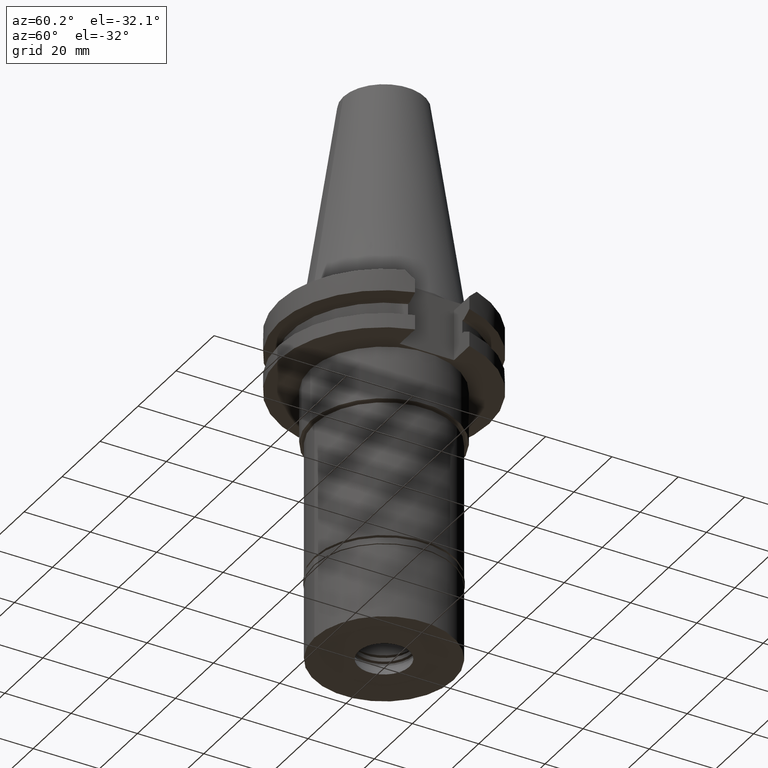
[diagram: clean part render]
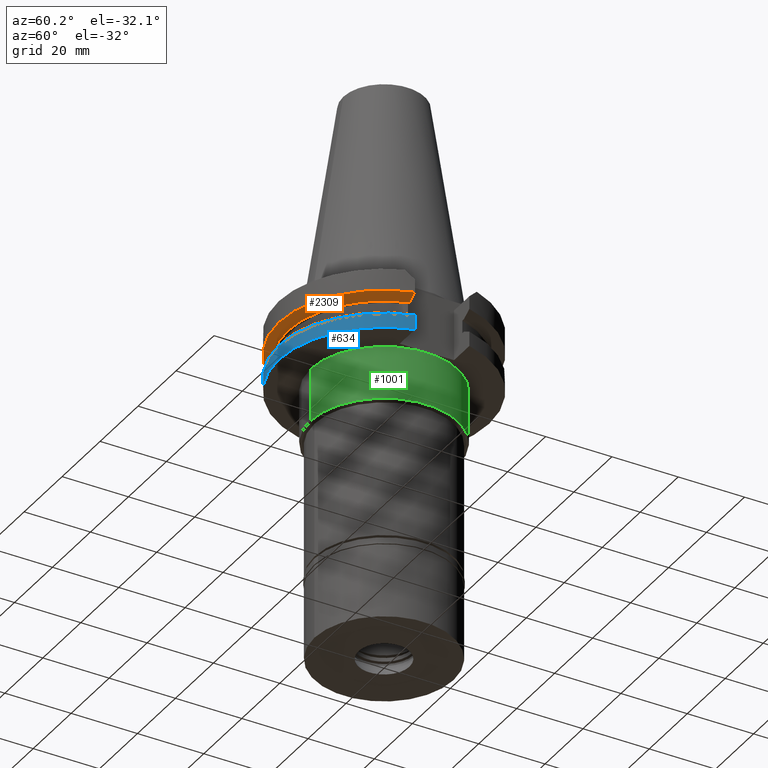
[diagram: same view with three faces highlighted in distinct colors, each labeled with its STEP entity id]
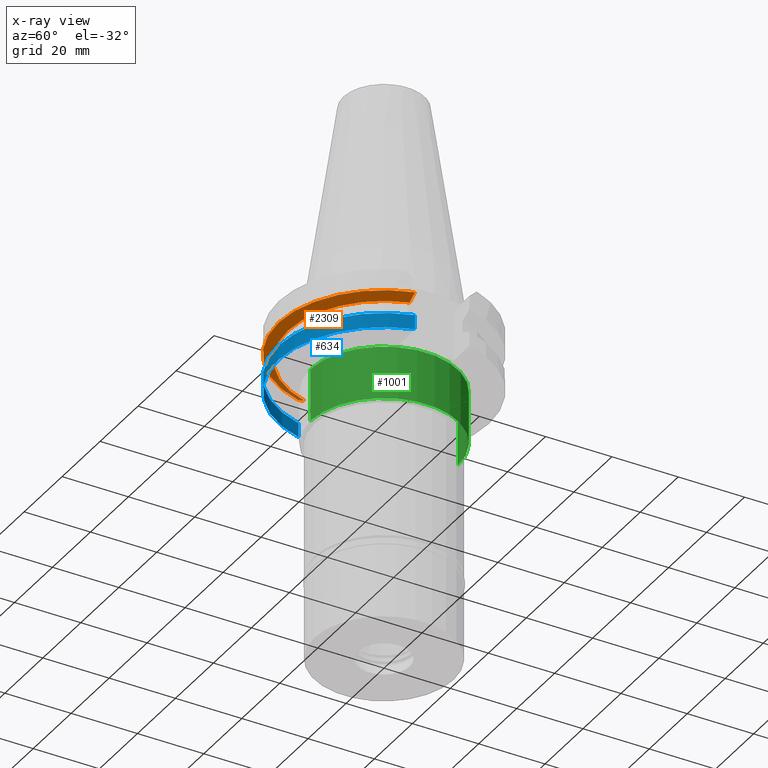
[diagram: x-ray of the same camera — body ghosted, the three highlighted faces saturated]
A machine part, auxiliary view with three faces highlighted in distinct colors.
The next image is the same camera in x-ray (body ghosted, the three faces saturated) — at least one of them is partly hidden behind the body in this view.
Their STEP definitions:

[orange] entity #2309 — the highlighted conical surface has half-angle 60 deg.
#106 = DIRECTION ( 'NONE',  ( 0.0000000000000000000, 0.0000000000000000000, 1.000000000000000000 ) ) ;
#123 = B_SPLINE_CURVE_WITH_KNOTS ( 'NONE', 3,
 ( #1326, #2079, #825, #1852 ),
 .UNSPECIFIED., .F., .F.,
 ( 4, 4 ),
 ( 0.0000000000000000000, 1.000000000000000000 ),
 .UNSPECIFIED. ) ;
#154 = CARTESIAN_POINT ( 'NONE',  ( 0.0000000000000000000, 1.121722380078999823E-14, -7.601333230925999551 ) ) ;
#247 = CARTESIAN_POINT ( 'NONE',  ( 0.0000000000000000000, 1.121722380078999823E-14, -8.404416615464000984 ) ) ;
#276 = AXIS2_PLACEMENT_3D ( 'NONE', #771, #1563, #1022 ) ;
#316 = CIRCLE ( 'NONE', #2155, 31.74999999999998579 ) ;
#335 = CARTESIAN_POINT ( 'NONE',  ( -30.67550165945999652, -8.189999874265000201, -7.601334354543999972 ) ) ;
#367 = CONICAL_SURFACE ( 'NONE', #2873, 30.35901877526999826, 1.047197551196400456 ) ;
#700 = DIRECTION ( 'NONE',  ( 0.0000000000000000000, 0.0000000000000000000, 1.000000000000000000 ) ) ;
#707 = EDGE_CURVE ( 'NONE', #2078, #3270, #2883, .T. ) ;
#713 = ORIENTED_EDGE ( 'NONE', *, *, #2317, .T. ) ;
#752 = CARTESIAN_POINT ( 'NONE',  ( 27.78616453824999866, -8.190000190937000824, -9.207500000000999663 ) ) ;
#771 = CARTESIAN_POINT ( 'NONE',  ( 0.0000000000000000000, 1.121722380078999823E-14, -9.207500000002999840 ) ) ;
#825 = CARTESIAN_POINT ( 'NONE',  ( -28.70626004157033506, -8.189998719094026214, -8.697957593883526073 ) ) ;
#938 = ORIENTED_EDGE ( 'NONE', *, *, #707, .T. ) ;
#1022 = DIRECTION ( 'NONE',  ( -0.9592008904639479638, -0.2827253998726845241, 0.0000000000000000000 ) ) ;
#1190 = CARTESIAN_POINT ( 'NONE',  ( 27.78616453824999866, -8.190000190937000824, -9.207500000000999663 ) ) ;
#1238 = CARTESIAN_POINT ( 'NONE',  ( 28.70625673696870450, -8.190000382308840088, -8.697959174931710891 ) ) ;
#1326 = CARTESIAN_POINT ( 'NONE',  ( -30.67550165945999652, -8.189999874265000201, -7.601334354543999972 ) ) ;
#1429 = EDGE_LOOP ( 'NONE', ( #713, #1548, #1573, #938 ) ) ;
#1458 = DIRECTION ( 'NONE',  ( 0.0000000000000000000, 1.000000000000000000, 0.0000000000000000000 ) ) ;
#1522 = CARTESIAN_POINT ( 'NONE',  ( 29.66936146405606323, -8.190001212344480308, -8.162569410039800744 ) ) ;
#1548 = ORIENTED_EDGE ( 'NONE', *, *, #3197, .F. ) ;
#1563 = DIRECTION ( 'NONE',  ( 0.0000000000000000000, 0.0000000000000000000, 1.000000000000000000 ) ) ;
#1573 = ORIENTED_EDGE ( 'NONE', *, *, #3018, .T. ) ;
#1781 = CARTESIAN_POINT ( 'NONE',  ( -27.78617704648999975, -8.189999360253999328, -9.207500000000999663 ) ) ;
#1852 = CARTESIAN_POINT ( 'NONE',  ( -27.78617704648999975, -8.189999360253999328, -9.207500000000999663 ) ) ;
#2078 = VERTEX_POINT ( 'NONE', #1781 ) ;
#2079 = CARTESIAN_POINT ( 'NONE',  ( -29.66936067443463543, -8.189999748623318254, -8.162570072066527516 ) ) ;
#2155 = AXIS2_PLACEMENT_3D ( 'NONE', #154, #106, #2362 ) ;
#2227 = CARTESIAN_POINT ( 'NONE',  ( 30.67550146398999900, -8.190000606391000915, -7.601327811861000150 ) ) ;
#2309 = ADVANCED_FACE ( 'NONE', ( #2735 ), #367, .T. ) ;
#2317 = EDGE_CURVE ( 'NONE', #3270, #2679, #2947, .T. ) ;
#2362 = DIRECTION ( 'NONE',  ( -0.9661575315241073270, -0.2579527559055020958, 0.0000000000000000000 ) ) ;
#2474 = VERTEX_POINT ( 'NONE', #335 ) ;
#2679 = VERTEX_POINT ( 'NONE', #2791 ) ;
#2735 = FACE_OUTER_BOUND ( 'NONE', #1429, .T. ) ;
#2791 = CARTESIAN_POINT ( 'NONE',  ( 30.67550146398999900, -8.190000606391000915, -7.601327811861000150 ) ) ;
#2873 = AXIS2_PLACEMENT_3D ( 'NONE', #247, #700, #1458 ) ;
#2883 = CIRCLE ( 'NONE', #276, 28.96803755052999918 ) ;
#2947 = B_SPLINE_CURVE_WITH_KNOTS ( 'NONE', 3,
 ( #752, #1238, #1522, #2227 ),
 .UNSPECIFIED., .F., .F.,
 ( 4, 4 ),
 ( 0.0000000000000000000, 1.000000000000000000 ),
 .UNSPECIFIED. ) ;
#3018 = EDGE_CURVE ( 'NONE', #2474, #2078, #123, .T. ) ;
#3197 = EDGE_CURVE ( 'NONE', #2474, #2679, #316, .T. ) ;
#3270 = VERTEX_POINT ( 'NONE', #1190 ) ;

[blue] entity #634 — the highlighted cylindrical surface (partial cylindrical patch) has radius 31.75 mm, axis along (0, 0, -1).
#15 = CYLINDRICAL_SURFACE ( 'NONE', #1604, 31.75000000000000000 ) ;
#67 = EDGE_CURVE ( 'NONE', #2189, #1221, #3184, .T. ) ;
#206 = CIRCLE ( 'NONE', #829, 31.74999999999998579 ) ;
#232 = DIRECTION ( 'NONE',  ( 0.9661575315241073270, -0.2579527559055020958, 0.0000000000000000000 ) ) ;
#245 = ORIENTED_EDGE ( 'NONE', *, *, #2153, .F. ) ;
#634 = ADVANCED_FACE ( 'NONE', ( #2291 ), #15, .T. ) ;
#732 = AXIS2_PLACEMENT_3D ( 'NONE', #1607, #1197, #2122 ) ;
#759 = DIRECTION ( 'NONE',  ( -7.636192226009995965E-09, 2.860066228704998693E-08, 0.9999999999999995559 ) ) ;
#828 = VECTOR ( 'NONE', #916, 999.9999999999998863 ) ;
#829 = AXIS2_PLACEMENT_3D ( 'NONE', #2508, #1217, #232 ) ;
#916 = DIRECTION ( 'NONE',  ( 3.682723435264923508E-08, 1.379363152860972129E-07, -0.9999999999999898970 ) ) ;
#1197 = DIRECTION ( 'NONE',  ( 0.0000000000000000000, 0.0000000000000000000, 1.000000000000000000 ) ) ;
#1205 = CARTESIAN_POINT ( 'NONE',  ( 30.67550162588999640, -8.189999999999999503, -19.05000000000000071 ) ) ;
#1217 = DIRECTION ( 'NONE',  ( 0.0000000000000000000, 0.0000000000000000000, -1.000000000000000000 ) ) ;
#1221 = VERTEX_POINT ( 'NONE', #1205 ) ;
#1246 = LINE ( 'NONE', #2022, #1361 ) ;
#1268 = ORIENTED_EDGE ( 'NONE', *, *, #2222, .T. ) ;
#1335 = DIRECTION ( 'NONE',  ( 0.0000000000000000000, 0.0000000000000000000, -1.000000000000000000 ) ) ;
#1361 = VECTOR ( 'NONE', #759, 1000.000000000000000 ) ;
#1459 = CARTESIAN_POINT ( 'NONE',  ( -30.67550165945999652, -8.189999874262001711, -14.65366564546999939 ) ) ;
#1547 = CARTESIAN_POINT ( 'NONE',  ( 0.0000000000000000000, 2.159878943485999787E-14, 76.36750000000000682 ) ) ;
#1604 = AXIS2_PLACEMENT_3D ( 'NONE', #1547, #1335, #2560 ) ;
#1607 = CARTESIAN_POINT ( 'NONE',  ( 0.0000000000000000000, 2.159878943485999787E-14, -19.05000000000000071 ) ) ;
#1864 = EDGE_LOOP ( 'NONE', ( #1268, #245, #2042, #2686 ) ) ;
#1988 = LINE ( 'NONE', #2766, #828 ) ;
#2022 = CARTESIAN_POINT ( 'NONE',  ( -30.67550162588999640, -8.189999999999999503, -19.05000000000000071 ) ) ;
#2023 = VERTEX_POINT ( 'NONE', #1459 ) ;
#2042 = ORIENTED_EDGE ( 'NONE', *, *, #67, .T. ) ;
#2122 = DIRECTION ( 'NONE',  ( 0.0000000000000000000, -1.000000000000000000, 0.0000000000000000000 ) ) ;
#2153 = EDGE_CURVE ( 'NONE', #2189, #2023, #1246, .T. ) ;
#2189 = VERTEX_POINT ( 'NONE', #2795 ) ;
#2222 = EDGE_CURVE ( 'NONE', #2914, #2023, #206, .T. ) ;
#2291 = FACE_OUTER_BOUND ( 'NONE', #1864, .T. ) ;
#2508 = CARTESIAN_POINT ( 'NONE',  ( 0.0000000000000000000, 1.055026073064999954E-14, -14.65366676908000088 ) ) ;
#2560 = DIRECTION ( 'NONE',  ( 0.0000000000000000000, -1.000000000000000000, 0.0000000000000000000 ) ) ;
#2686 = ORIENTED_EDGE ( 'NONE', *, *, #3237, .F. ) ;
#2766 = CARTESIAN_POINT ( 'NONE',  ( 30.67550146398999900, -8.190000606413001094, -14.65367218809999983 ) ) ;
#2795 = CARTESIAN_POINT ( 'NONE',  ( -30.67550162588999640, -8.189999999999999503, -19.05000000000000071 ) ) ;
#2914 = VERTEX_POINT ( 'NONE', #3108 ) ;
#3108 = CARTESIAN_POINT ( 'NONE',  ( 30.67550146398999900, -8.190000606413001094, -14.65367218809999983 ) ) ;
#3184 = CIRCLE ( 'NONE', #732, 31.75000000000000000 ) ;
#3237 = EDGE_CURVE ( 'NONE', #2914, #1221, #1988, .T. ) ;

[green] entity #1001 — the highlighted cylindrical surface (partial cylindrical patch) has radius 22.225 mm, axis along (0, 0, -1).
#167 = EDGE_CURVE ( 'NONE', #624, #470, #2293, .T. ) ;
#384 = AXIS2_PLACEMENT_3D ( 'NONE', #2440, #2457, #2180 ) ;
#385 = DIRECTION ( 'NONE',  ( 0.0000000000000000000, -1.000000000000000000, 0.0000000000000000000 ) ) ;
#470 = VERTEX_POINT ( 'NONE', #1633 ) ;
#546 = CARTESIAN_POINT ( 'NONE',  ( 0.0000000000000000000, 22.22500000000000142, -19.05000000000000071 ) ) ;
#574 = CIRCLE ( 'NONE', #2372, 22.22500000000000142 ) ;
#624 = VERTEX_POINT ( 'NONE', #546 ) ;
#630 = CARTESIAN_POINT ( 'NONE',  ( 0.0000000000000000000, 2.159878943485999787E-14, 76.36750000000000682 ) ) ;
#701 = LINE ( 'NONE', #1725, #1212 ) ;
#757 = DIRECTION ( 'NONE',  ( 0.0000000000000000000, 0.0000000000000000000, -1.000000000000000000 ) ) ;
#997 = CIRCLE ( 'NONE', #384, 22.22500000000000142 ) ;
#1001 = ADVANCED_FACE ( 'NONE', ( #1353 ), #2121, .T. ) ;
#1129 = ORIENTED_EDGE ( 'NONE', *, *, #1159, .T. ) ;
#1159 = EDGE_CURVE ( 'NONE', #1970, #470, #997, .T. ) ;
#1212 = VECTOR ( 'NONE', #1543, 1000.000000000000000 ) ;
#1257 = VECTOR ( 'NONE', #757, 1000.000000000000000 ) ;
#1353 = FACE_OUTER_BOUND ( 'NONE', #3285, .T. ) ;
#1543 = DIRECTION ( 'NONE',  ( 0.0000000000000000000, 0.0000000000000000000, -1.000000000000000000 ) ) ;
#1633 = CARTESIAN_POINT ( 'NONE',  ( 0.0000000000000000000, 22.22500000000000142, -35.00000000000000000 ) ) ;
#1725 = CARTESIAN_POINT ( 'NONE',  ( 0.0000000000000000000, -22.22500000000000142, -19.05000000000000071 ) ) ;
#1879 = EDGE_CURVE ( 'NONE', #2251, #1970, #701, .T. ) ;
#1907 = CARTESIAN_POINT ( 'NONE',  ( 0.0000000000000000000, 2.159878943485999787E-14, -19.05000000000000071 ) ) ;
#1970 = VERTEX_POINT ( 'NONE', #2249 ) ;
#2071 = CARTESIAN_POINT ( 'NONE',  ( 0.0000000000000000000, 22.22500000000000142, -19.05000000000000071 ) ) ;
#2121 = CYLINDRICAL_SURFACE ( 'NONE', #3248, 22.22500000000000142 ) ;
#2139 = DIRECTION ( 'NONE',  ( 0.0000000000000000000, 0.0000000000000000000, -1.000000000000000000 ) ) ;
#2180 = DIRECTION ( 'NONE',  ( 0.0000000000000000000, -1.000000000000000000, 0.0000000000000000000 ) ) ;
#2197 = ORIENTED_EDGE ( 'NONE', *, *, #3140, .T. ) ;
#2249 = CARTESIAN_POINT ( 'NONE',  ( 0.0000000000000000000, -22.22500000000000142, -35.00000000000000000 ) ) ;
#2251 = VERTEX_POINT ( 'NONE', #2483 ) ;
#2293 = LINE ( 'NONE', #2071, #1257 ) ;
#2372 = AXIS2_PLACEMENT_3D ( 'NONE', #1907, #2139, #2675 ) ;
#2440 = CARTESIAN_POINT ( 'NONE',  ( 0.0000000000000000000, 2.159878943485999787E-14, -35.00000000000000000 ) ) ;
#2457 = DIRECTION ( 'NONE',  ( 0.0000000000000000000, 0.0000000000000000000, 1.000000000000000000 ) ) ;
#2483 = CARTESIAN_POINT ( 'NONE',  ( 0.0000000000000000000, -22.22500000000000142, -19.05000000000000071 ) ) ;
#2675 = DIRECTION ( 'NONE',  ( 0.0000000000000000000, 1.000000000000000000, 0.0000000000000000000 ) ) ;
#2771 = ORIENTED_EDGE ( 'NONE', *, *, #1879, .T. ) ;
#2885 = ORIENTED_EDGE ( 'NONE', *, *, #167, .F. ) ;
#3140 = EDGE_CURVE ( 'NONE', #624, #2251, #574, .T. ) ;
#3149 = DIRECTION ( 'NONE',  ( 0.0000000000000000000, 0.0000000000000000000, -1.000000000000000000 ) ) ;
#3248 = AXIS2_PLACEMENT_3D ( 'NONE', #630, #3149, #385 ) ;
#3285 = EDGE_LOOP ( 'NONE', ( #2197, #2771, #1129, #2885 ) ) ;